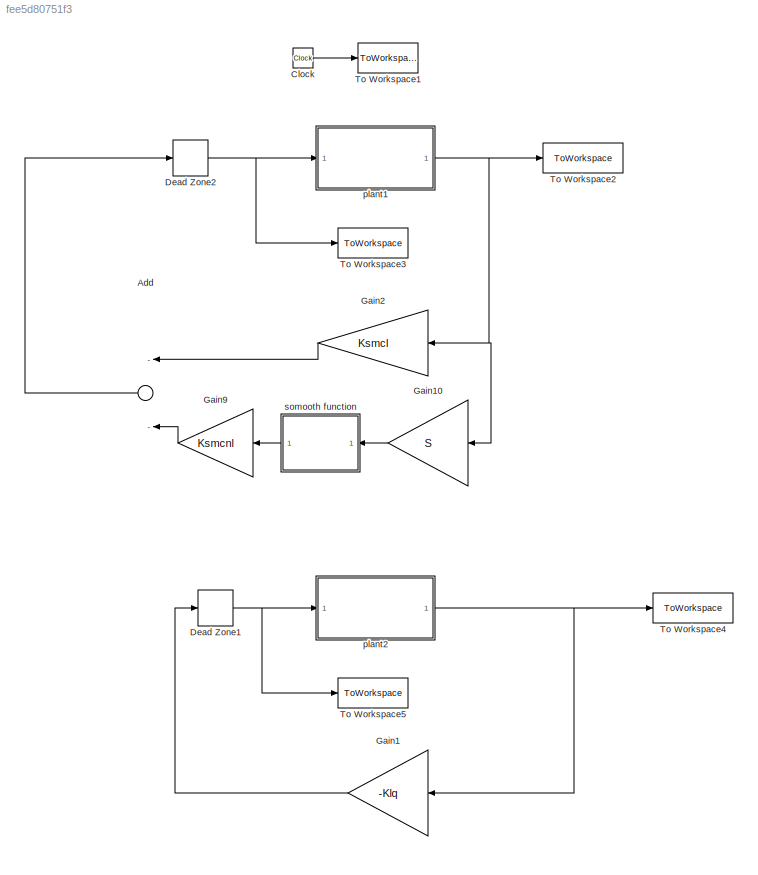
MODEL slx_fee5d80751f3
KIND model
CONFIG AbsTol = auto
CONFIG EnableMultiTasking = on
CONFIG FixedStep = Ts
CONFIG MaxStep = auto
CONFIG MinStep = auto
CONFIG RelTol = 1e-3
CONFIG SampleTimeConstraint = Unconstrained
CONFIG Solver = FixedStepAuto
CONFIG SolverName = FixedStepAuto
CONFIG StartTime = 0.0
CONFIG StopTime = 10
BLOCK [Sum] Add
  InputSameDT = off
  Inputs = --
  OutDataTypeStr = Inherit: Inherit via internal rule
  Ports = [2, 1]
  SaturateOnIntegerOverflow = off
BLOCK [Clock] Clock
BLOCK [DeadZone] Dead Zone1
  LowerValue = -amp
  UpperValue = amp
BLOCK [DeadZone] Dead Zone2
  LowerValue = -amp
  UpperValue = amp
BLOCK [Gain] Gain1
  Gain = -Klq
  Multiplication = Matrix(K*u)
  OutDataTypeStr = Inherit: Inherit via internal rule
  ParamDataTypeStr = Inherit: Inherit via internal rule
  SaturateOnIntegerOverflow = off
BLOCK [Gain] Gain10
  Gain = S
  Multiplication = Matrix(K*u)
  OutDataTypeStr = Inherit: Inherit via internal rule
  ParamDataTypeStr = Inherit: Inherit via internal rule
  SaturateOnIntegerOverflow = off
BLOCK [Gain] Gain2
  Gain = Ksmcl
  Multiplication = Matrix(K*u)
  OutDataTypeStr = Inherit: Inherit via internal rule
  ParamDataTypeStr = Inherit: Inherit via internal rule
  SaturateOnIntegerOverflow = off
BLOCK [Gain] Gain9
  Gain = Ksmcnl
  OutDataTypeStr = Inherit: Inherit via internal rule
  ParamDataTypeStr = Inherit: Inherit via internal rule
  SaturateOnIntegerOverflow = off
BLOCK [ToWorkspace] To Workspace1
  MaxDataPoints = inf
  Ports = [1]
  SampleTime = -1
  VariableName = simTime
BLOCK [ToWorkspace] To Workspace2
  MaxDataPoints = inf
  Ports = [1]
  SampleTime = -1
  VariableName = X
BLOCK [ToWorkspace] To Workspace3
  MaxDataPoints = inf
  Ports = [1]
  SampleTime = -1
  VariableName = u
BLOCK [ToWorkspace] To Workspace4
  MaxDataPoints = inf
  Ports = [1]
  SampleTime = -1
  VariableName = Xlq
BLOCK [ToWorkspace] To Workspace5
  MaxDataPoints = inf
  Ports = [1]
  SampleTime = -1
  VariableName = ulq
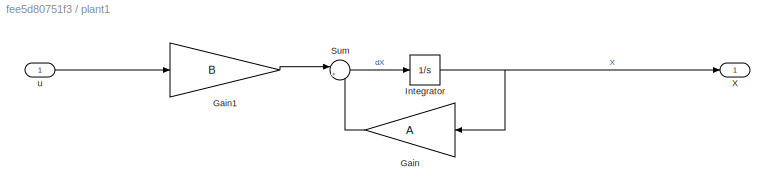
BLOCK [SubSystem] plant1
  Ports = [1, 1]
  RequestExecContextInheritance = off
  Variant = off
BLOCK [Gain] plant1/Gain
  Gain = A
  Multiplication = Matrix(K*u)
  OutDataTypeStr = Inherit: Inherit via internal rule
  ParamDataTypeStr = Inherit: Inherit via internal rule
  SaturateOnIntegerOverflow = off
BLOCK [Gain] plant1/Gain1
  Gain = B
  Multiplication = Matrix(K*u)
  OutDataTypeStr = Inherit: Inherit via internal rule
  ParamDataTypeStr = Inherit: Inherit via internal rule
  SaturateOnIntegerOverflow = off
BLOCK [Integrator] plant1/Integrator
  InitialCondition = x0
  Ports = [1, 1]
BLOCK [Sum] plant1/Sum
  IconShape = round
  InputSameDT = off
  Inputs = |++
  OutDataTypeStr = Inherit: Inherit via internal rule
  Ports = [2, 1]
  SaturateOnIntegerOverflow = off
BLOCK [Outport] plant1/X
  IconDisplay = Port number
BLOCK [Inport] plant1/u
  IconDisplay = Port number
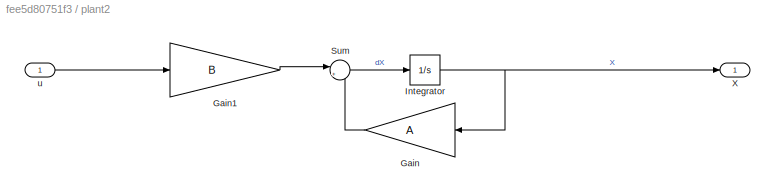
BLOCK [SubSystem] plant2
  Ports = [1, 1]
  RequestExecContextInheritance = off
  Variant = off
BLOCK [Gain] plant2/Gain
  Gain = A
  Multiplication = Matrix(K*u)
  OutDataTypeStr = Inherit: Inherit via internal rule
  ParamDataTypeStr = Inherit: Inherit via internal rule
  SaturateOnIntegerOverflow = off
BLOCK [Gain] plant2/Gain1
  Gain = B
  Multiplication = Matrix(K*u)
  OutDataTypeStr = Inherit: Inherit via internal rule
  ParamDataTypeStr = Inherit: Inherit via internal rule
  SaturateOnIntegerOverflow = off
BLOCK [Integrator] plant2/Integrator
  InitialCondition = x0
  Ports = [1, 1]
BLOCK [Sum] plant2/Sum
  IconShape = round
  InputSameDT = off
  Inputs = |++
  OutDataTypeStr = Inherit: Inherit via internal rule
  Ports = [2, 1]
  SaturateOnIntegerOverflow = off
BLOCK [Outport] plant2/X
  IconDisplay = Port number
BLOCK [Inport] plant2/u
  IconDisplay = Port number
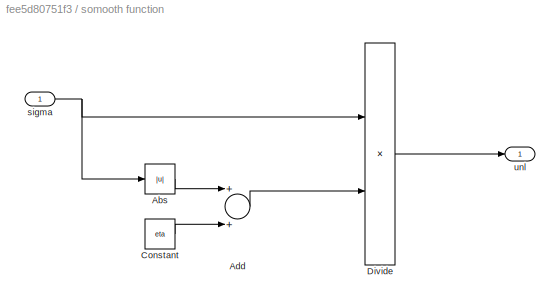
BLOCK [SubSystem] somooth function
  Ports = [1, 1]
  RequestExecContextInheritance = off
  Variant = off
BLOCK [Abs] somooth function/Abs
  SaturateOnIntegerOverflow = off
BLOCK [Sum] somooth function/Add
  InputSameDT = off
  OutDataTypeStr = Inherit: Inherit via internal rule
  Ports = [2, 1]
  SaturateOnIntegerOverflow = off
BLOCK [Constant] somooth function/Constant
  Value = eta
BLOCK [Product] somooth function/Divide
  InputSameDT = off
  Inputs = */
  OutDataTypeStr = Inherit: Inherit via internal rule
  Ports = [2, 1]
  RndMeth = Floor
  SaturateOnIntegerOverflow = off
BLOCK [Inport] somooth function/sigma
  IconDisplay = Port number
BLOCK [Outport] somooth function/unl
  IconDisplay = Port number
LINE Add:1 -> Dead Zone2:1
LINE Clock:1 -> To Workspace1:1
NET Dead Zone1:1 -> To Workspace5:1, plant2:1
NET Dead Zone2:1 -> To Workspace3:1, plant1:1
LINE Gain10:1 -> somooth function:1
LINE Gain1:1 -> Dead Zone1:1
LINE Gain2:1 -> Add:1
LINE Gain9:1 -> Add:2
LINE plant1/Gain1:1 -> plant1/Sum:1
LINE plant1/Gain:1 -> plant1/Sum:2
NET plant1/Integrator:1 -> plant1/Gain:1, plant1/X:1
LINE plant1/Sum:1 -> plant1/Integrator:1
LINE plant1/u:1 -> plant1/Gain1:1
NET plant1:1 -> Gain10:1, Gain2:1, To Workspace2:1
LINE plant2/Gain1:1 -> plant2/Sum:1
LINE plant2/Gain:1 -> plant2/Sum:2
NET plant2/Integrator:1 -> plant2/Gain:1, plant2/X:1
LINE plant2/Sum:1 -> plant2/Integrator:1
LINE plant2/u:1 -> plant2/Gain1:1
NET plant2:1 -> Gain1:1, To Workspace4:1
LINE somooth function/Abs:1 -> somooth function/Add:1
LINE somooth function/Add:1 -> somooth function/Divide:2
LINE somooth function/Constant:1 -> somooth function/Add:2
LINE somooth function/Divide:1 -> somooth function/unl:1
NET somooth function/sigma:1 -> somooth function/Abs:1, somooth function/Divide:1
LINE somooth function:1 -> Gain9:1
note: NET lines group one-source signal fan-out (src -> all destinations, sorted); 1:1 wires keep LINE
